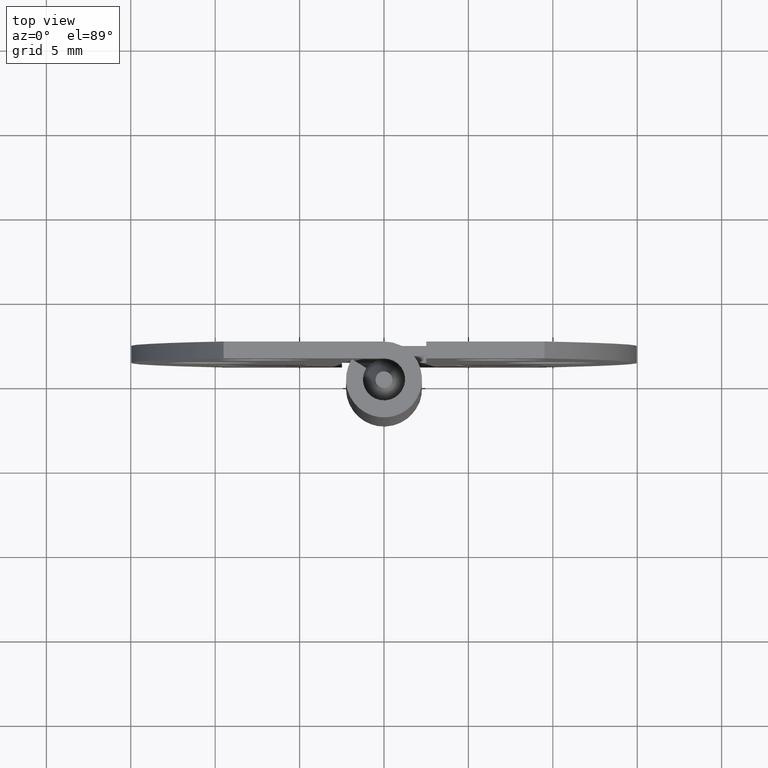
[diagram: clean part render]
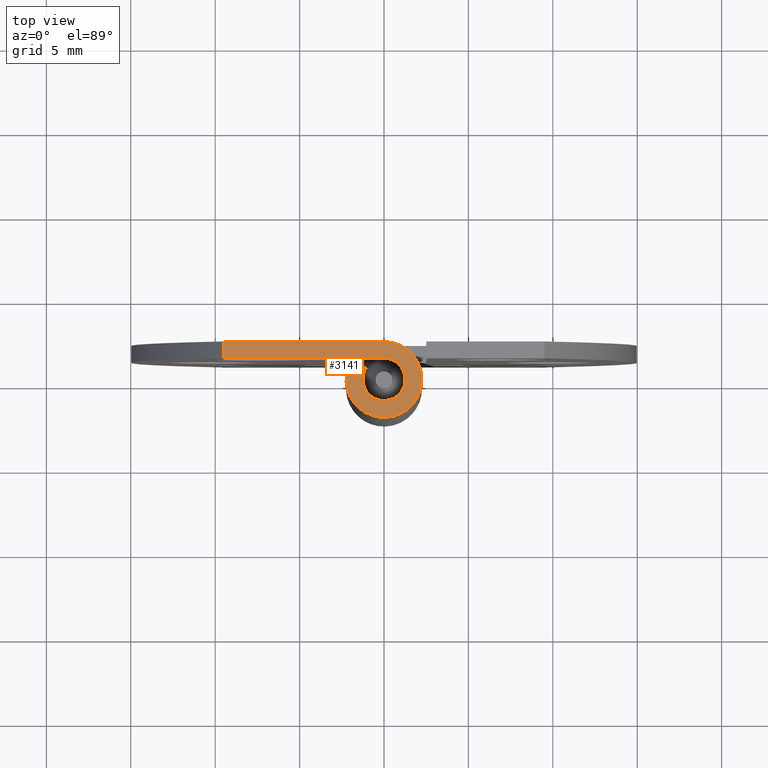
[diagram: same view with one face highlighted and labeled with its STEP entity id]
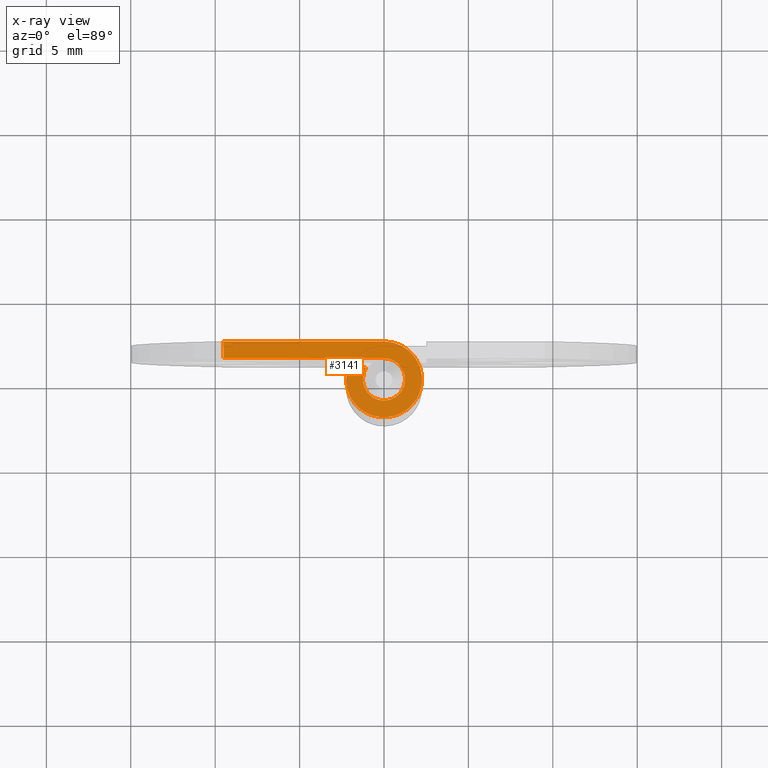
[diagram: x-ray of the same camera — body ghosted, the highlighted face saturated]
A machine part, top view. The second image highlights one B-rep face of the part: STEP entity #3141.
The next image is the same camera in x-ray: the body ghosted, the highlighted face saturated — about 0% of this face is hidden behind the body in this view.
In plain terms, the highlighted face is a freeform B-spline surface patch.
Its self-contained STEP definition (entity closure, byte-faithful):
#3005=CARTESIAN_POINT('',(-9.500012757139610,2.249999999999975,30.999991999999899));
#3006=VERTEX_POINT('',#3005);
#3029=CARTESIAN_POINT('',(-9.500012757139610,1.250000000000000,30.999991999999899));
#3030=VERTEX_POINT('',#3029);
#3044=CARTESIAN_POINT('',(-9.500012757139610,1.250000000000000,30.999991999999899));
#3045=CARTESIAN_POINT('',(-9.500012757139610,2.249999999999975,30.999991999999899));
#3046=QUASI_UNIFORM_CURVE('',1,(#3044,#3045),.UNSPECIFIED.,.F.,.U.);
#3047=EDGE_CURVE('',#3030,#3006,#3046,.T.);
#3072=CARTESIAN_POINT('',(-10.086917877283090,-2.474130392232690,30.999991999999899));
#3073=CARTESIAN_POINT('',(2.836752328947214,-2.474130392232690,30.999991999999899));
#3074=CARTESIAN_POINT('',(-10.086917877283090,2.474744446004468,30.999991999999899));
#3075=CARTESIAN_POINT('',(2.836752328947214,2.474744446004468,30.999991999999899));
#3076=B_SPLINE_SURFACE_WITH_KNOTS('',1,1,((#3072,#3074),(#3073,#3075)),.UNSPECIFIED.,.F.,.F.,.U.,(2,2),(2,2),(0.0,12.923670206230311),(0.0,4.948874838237158),.UNSPECIFIED.);
#3077=CARTESIAN_POINT('',(1.377682E-016,2.250000000000000,30.999991999999899));
#3078=VERTEX_POINT('',#3077);
#3079=CARTESIAN_POINT('',(1.377682E-016,2.250000000000000,30.999991999999899));
#3080=CARTESIAN_POINT('',(-9.500012757139610,2.249999999999975,30.999991999999899));
#3081=QUASI_UNIFORM_CURVE('',1,(#3079,#3080),.UNSPECIFIED.,.F.,.U.);
#3082=EDGE_CURVE('',#3078,#3006,#3081,.T.);
#3083=ORIENTED_EDGE('',*,*,#3082,.T.);
#3084=ORIENTED_EDGE('',*,*,#3047,.F.);
#3085=CARTESIAN_POINT('',(-2.296137E-016,1.250000000000000,30.999991999999899));
#3086=VERTEX_POINT('',#3085);
#3087=CARTESIAN_POINT('',(-9.500012757139610,1.250000000000000,30.999991999999899));
#3088=CARTESIAN_POINT('',(-2.296137E-016,1.250000000000000,30.999991999999899));
#3089=QUASI_UNIFORM_CURVE('',1,(#3087,#3088),.UNSPECIFIED.,.F.,.U.);
#3090=EDGE_CURVE('',#3030,#3086,#3089,.T.);
#3091=ORIENTED_EDGE('',*,*,#3090,.T.);
#3092=CARTESIAN_POINT('',(-1.057381461704126,0.666666666666668,30.999991999999899));
#3093=VERTEX_POINT('',#3092);
#3094=CARTESIAN_POINT('',(0.0,1.250000000000000,30.999991999999899));
#3095=CARTESIAN_POINT('',(0.968861217783209,1.250000000000000,30.999991999999896));
#3096=CARTESIAN_POINT('',(1.210499327424855,0.311755318004319,30.999991999999899));
#3097=CARTESIAN_POINT('',(1.452137437066501,-0.626489363991362,30.999991999999896));
#3098=CARTESIAN_POINT('',(0.603807364424560,-1.094493794713642,30.999991999999899));
#3099=CARTESIAN_POINT('',(-0.244522708217381,-1.562498225435921,30.999991999999896));
#3100=CARTESIAN_POINT('',(-0.909315076369610,-0.857698135643846,30.999991999999899));
#3101=CARTESIAN_POINT('',(-1.574107444521839,-0.152898045851772,30.999991999999896));
#3102=CARTESIAN_POINT('',(-1.057381461704126,0.666666666666668,30.999991999999899));
#3110=(BOUNDED_CURVE()B_SPLINE_CURVE(2,(#3094,#3095,#3096,#3097,#3098,#3099,#3100,#3101,#3102),.UNSPECIFIED.,.F.,.U.)B_SPLINE_CURVE_WITH_KNOTS((3,2,2,2,3),(0.0,0.250000000000000,0.500000000000000,0.750000000000000,1.0),.UNSPECIFIED.)CURVE()GEOMETRIC_REPRESENTATION_ITEM()RATIONAL_B_SPLINE_CURVE((1.0,0.790381001290977,1.0,0.790381001290977,1.0,0.790381001290977,1.0,0.790381001290977,1.0))REPRESENTATION_ITEM(''));
#3111=EDGE_CURVE('',#3086,#3093,#3110,.T.);
#3112=ORIENTED_EDGE('',*,*,#3111,.T.);
#3113=CARTESIAN_POINT('',(-1.903286631067425,1.200000000000000,30.999991999999899));
#3114=VERTEX_POINT('',#3113);
#3115=CARTESIAN_POINT('',(-1.057381461704126,0.666666666666668,30.999991999999899));
#3116=CARTESIAN_POINT('',(-1.903286631067425,1.200000000000000,30.999991999999899));
#3117=QUASI_UNIFORM_CURVE('',1,(#3115,#3116),.UNSPECIFIED.,.F.,.U.);
#3118=EDGE_CURVE('',#3093,#3114,#3117,.T.);
#3119=ORIENTED_EDGE('',*,*,#3118,.T.);
#3120=CARTESIAN_POINT('',(0.0,2.250000000000000,30.999991999999899));
#3121=CARTESIAN_POINT('',(1.743950192009777,2.250000000000000,30.999991999999903));
#3122=CARTESIAN_POINT('',(2.178898789364738,0.561159572407775,30.999991999999899));
#3123=CARTESIAN_POINT('',(2.613847386719701,-1.127680855184452,30.999991999999903));
#3124=CARTESIAN_POINT('',(1.086853255964207,-1.970088830484555,30.999991999999899));
#3125=CARTESIAN_POINT('',(-0.440140874791286,-2.812496805784658,30.999991999999903));
#3126=CARTESIAN_POINT('',(-1.636767137465298,-1.543856644158923,30.999991999999899));
#3127=CARTESIAN_POINT('',(-2.833393400139309,-0.275216482533190,30.999991999999903));
#3128=CARTESIAN_POINT('',(-1.903286631067427,1.200000000000002,30.999991999999899));
#3136=(BOUNDED_CURVE()B_SPLINE_CURVE(2,(#3120,#3121,#3122,#3123,#3124,#3125,#3126,#3127,#3128),.UNSPECIFIED.,.F.,.U.)B_SPLINE_CURVE_WITH_KNOTS((3,2,2,2,3),(0.0,0.250000000000000,0.500000000000000,0.750000000000000,1.0),.UNSPECIFIED.)CURVE()GEOMETRIC_REPRESENTATION_ITEM()RATIONAL_B_SPLINE_CURVE((1.0,0.790381001290977,1.0,0.790381001290977,1.0,0.790381001290977,1.0,0.790381001290977,1.0))REPRESENTATION_ITEM(''));
#3137=EDGE_CURVE('',#3078,#3114,#3136,.T.);
#3138=ORIENTED_EDGE('',*,*,#3137,.F.);
#3139=EDGE_LOOP('',(#3083,#3084,#3091,#3112,#3119,#3138));
#3140=FACE_OUTER_BOUND('',#3139,.T.);
#3141=ADVANCED_FACE('',(#3140),#3076,.T.);